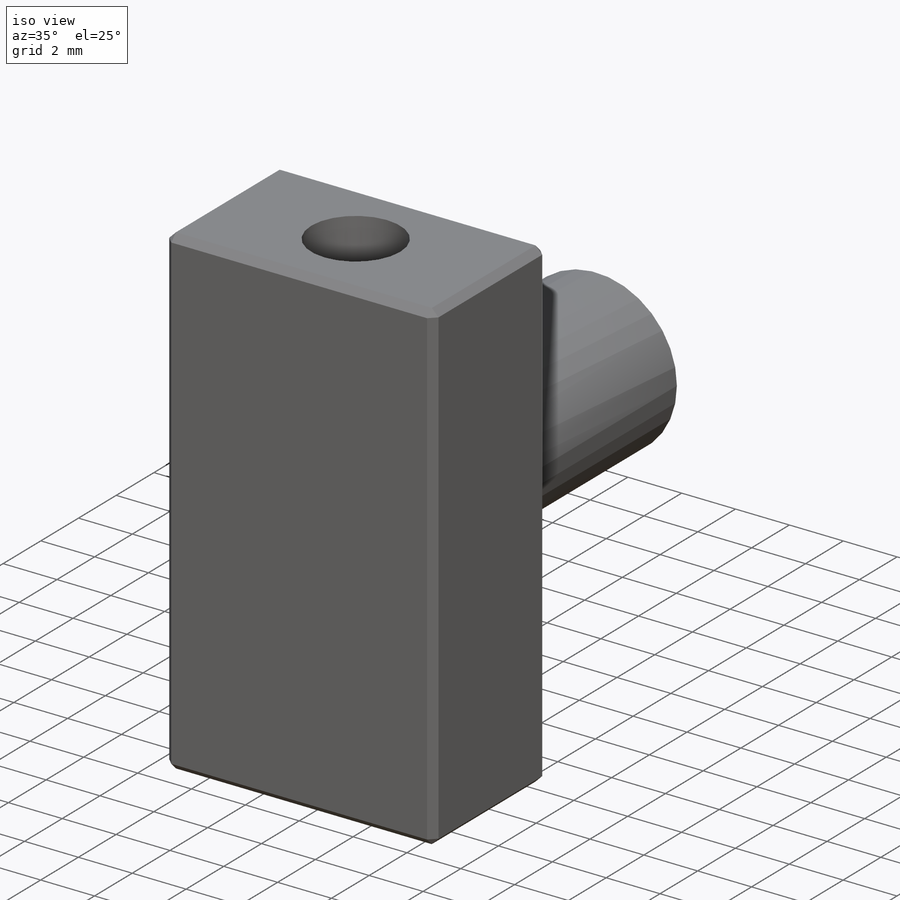
[diagram: iso view]
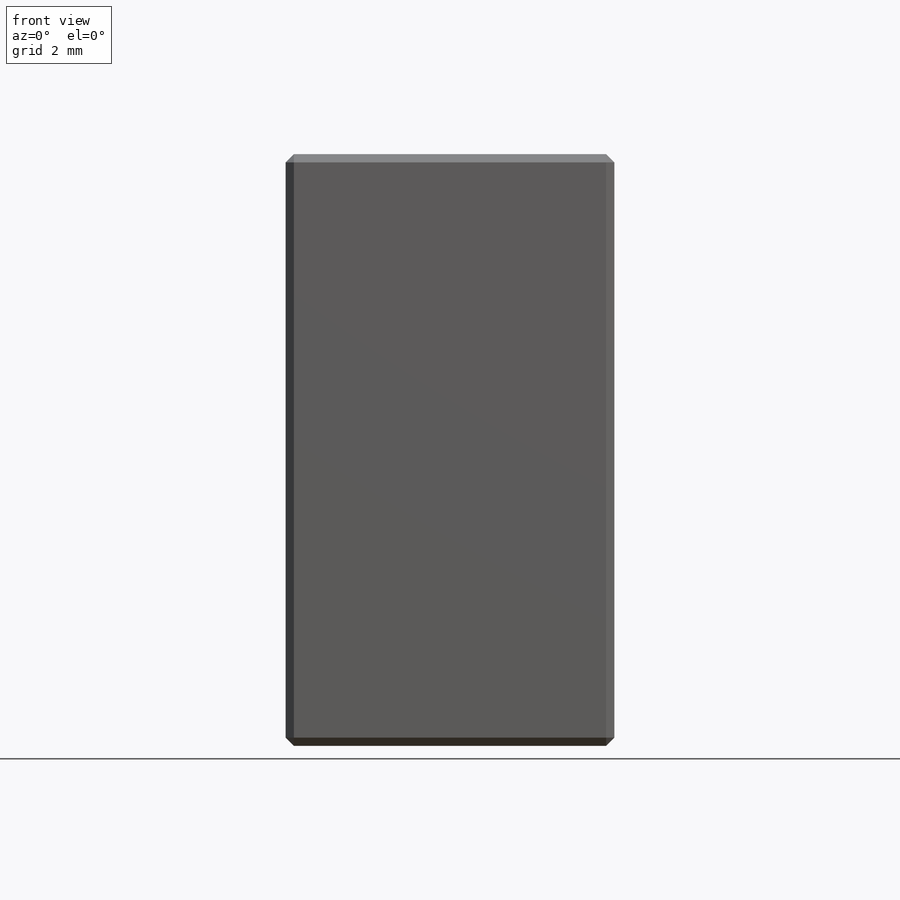
[diagram: front view]
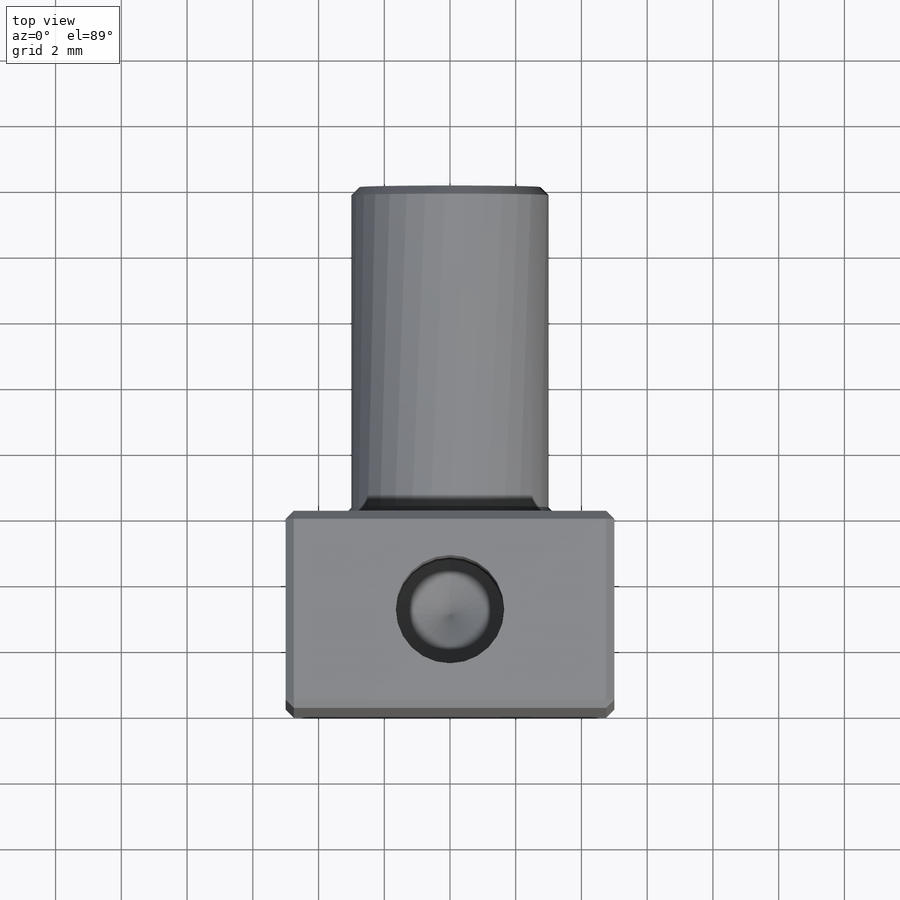
[diagram: top view]
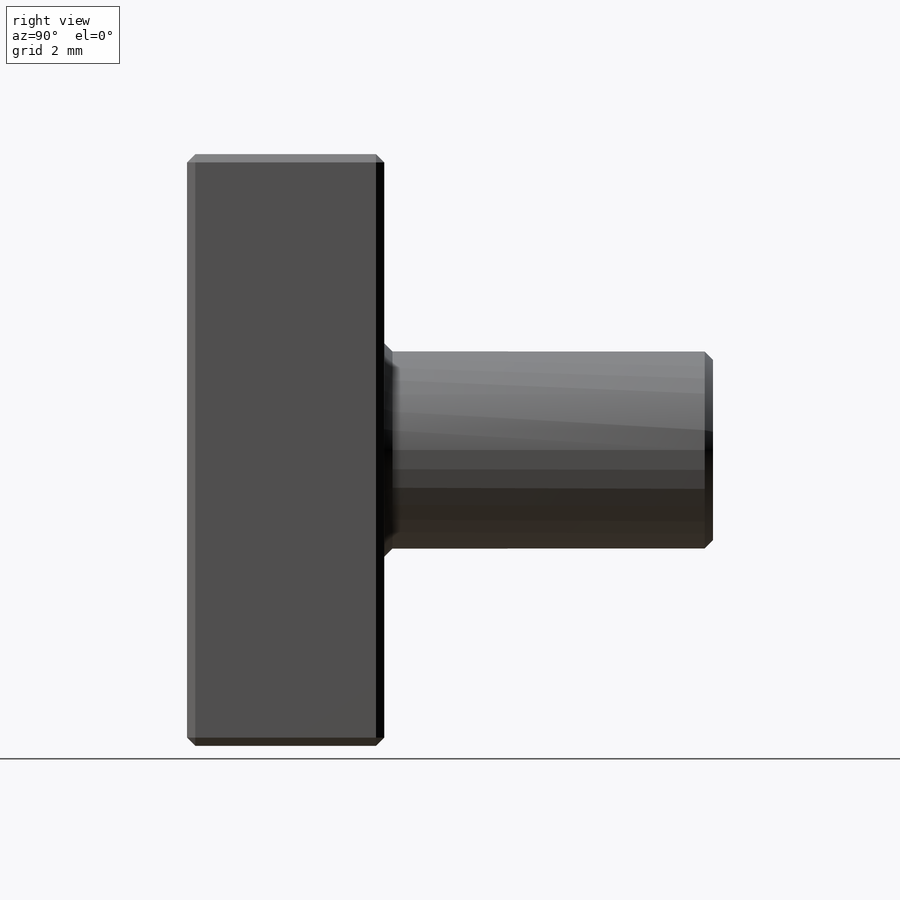
[diagram: right view]
SOLIDWORKS PART (.sldprt)
format: sldprt  version: not decoded by parser v0  size: 465,920 bytes
history: native  units: mm
features: sketch x4, extrude x2, thread x2, material x1, hole x1, chamfer x1 (+15 scaffold rows collapsed)
feature tree (26):
  scaffold x15  (default folders/planes/origin — collapsed)
  material  "1060 Alloy"
  sketch  "Sketch1"  dims[D1=18.0mm D2=10.0mm]
  extrude  "Extrude1"  Depth=6mm
  sketch  "Sketch2"  dims[D1=6.0mm]
  extrude  "Extrude2"  Depth=10mm
  hole  "M4x0.7 Tapped Hole1"  Diameter=3.3mm Depth=8mm
  sketch  "3DSketch1"  dims[D1=5.0mm D2=3.0mm]
  sketch  "Sketch3"  dims[hole-wizard template sketch: 47 standard entries collapsed; hole parameters kept: c15.Tap Drill Depth=8.0mm c15.D3=~14.816244mm c15.Drill Angle=118.0deg]
  thread  "Hole Thread1"  Diameter=8mm  [1 undecoded]
  thread  "Hole Thread2"  Diameter=8mm  [1 undecoded]
  chamfer  "Chamfer3"  Distance=0.25mm Angle=45deg
decode coverage: 10 of 10 modeling features carry decoded parameters
note: ~ marks probable driven/reference dimensions
note: 2 parameter values undecoded
note: suppression state not decoded; provenance and decode notes live in map.json
